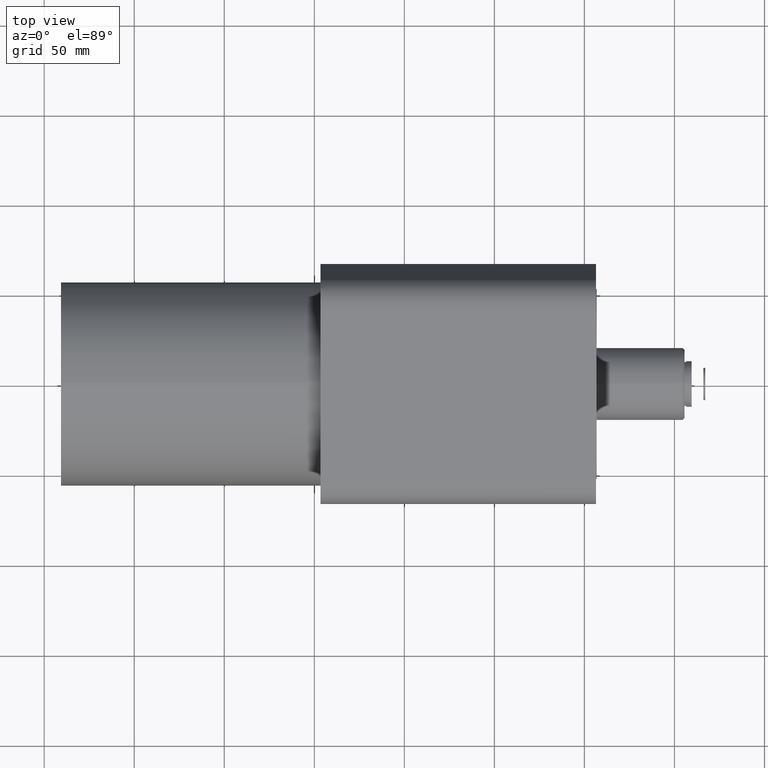
[diagram: clean part render]
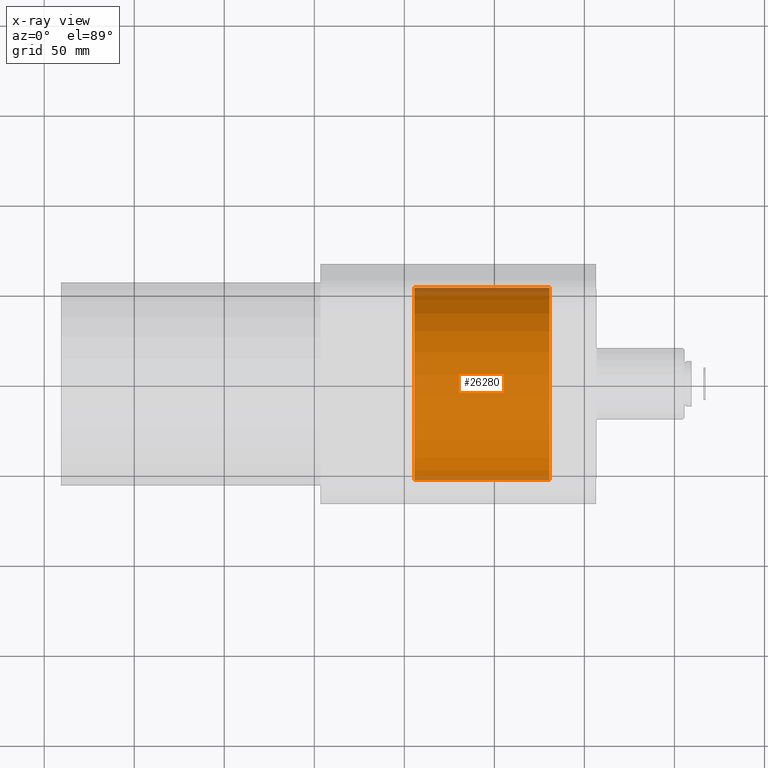
[diagram: x-ray — body ghosted, one internal face saturated and labeled with its STEP entity id]
A machine part, top view, then the same camera in x-ray: the body is ghosted and one INTERNAL B-rep face — a face not visible from any outside direction — is saturated and labeled: STEP entity #26280.
In plain terms, the highlighted cylindrical surface (bore or boss wall) has radius 53.5 mm, axis along (-1, -0, 0).
Its self-contained STEP definition (entity closure, byte-faithful):
#553 = FACE_OUTER_BOUND ( 'NONE', #23448, .T. ) ;
#1576 = AXIS2_PLACEMENT_3D ( 'NONE', #26874, #3689, #33622 ) ;
#1836 = AXIS2_PLACEMENT_3D ( 'NONE', #35008, #15714, #46142 ) ;
#3689 = DIRECTION ( 'NONE',  ( 1.000000000000000000, 0.000000000000000000, -0.000000000000000000 ) ) ;
#4639 = CIRCLE ( 'NONE', #1576, 53.50000000000000000 ) ;
#4990 = EDGE_CURVE ( 'NONE', #20344, #20344, #8792, .T. ) ;
#5841 = ORIENTED_EDGE ( 'NONE', *, *, #35771, .F. ) ;
#8739 = DIRECTION ( 'NONE',  ( -1.000000000000000000, -0.000000000000000000, 0.000000000000000000 ) ) ;
#8792 = CIRCLE ( 'NONE', #1836, 53.50000000000000000 ) ;
#12369 = CYLINDRICAL_SURFACE ( 'NONE', #14367, 53.50000000000000000 ) ;
#14367 = AXIS2_PLACEMENT_3D ( 'NONE', #30719, #8739, #41817 ) ;
#15714 = DIRECTION ( 'NONE',  ( -1.000000000000000000, -0.000000000000000000, 0.000000000000000000 ) ) ;
#17149 = VERTEX_POINT ( 'NONE', #31886 ) ;
#20344 = VERTEX_POINT ( 'NONE', #28300 ) ;
#23448 = EDGE_LOOP ( 'NONE', ( #47745 ) ) ;
#26280 = ADVANCED_FACE ( 'NONE', ( #33860, #553 ), #12369, .F. ) ;
#26874 = CARTESIAN_POINT ( 'NONE',  ( -94.38570820876500989, -2.868484540601966733E-14, -1.280599160271244296E-16 ) ) ;
#28300 = CARTESIAN_POINT ( 'NONE',  ( -19.38570820876500633, 16.73277019097461960, 50.81598569088304629 ) ) ;
#30719 = CARTESIAN_POINT ( 'NONE',  ( -156.2462040789306741, -2.868484540601966733E-14, -1.280599160271244296E-16 ) ) ;
#31600 = EDGE_LOOP ( 'NONE', ( #5841 ) ) ;
#31886 = CARTESIAN_POINT ( 'NONE',  ( -94.38570820876500989, 16.73277019097461960, 50.81598569088304629 ) ) ;
#33622 = DIRECTION ( 'NONE',  ( 0.000000000000000000, 0.3127620596443859702, 0.9498315082408046450 ) ) ;
#33860 = FACE_OUTER_BOUND ( 'NONE', #31600, .T. ) ;
#35008 = CARTESIAN_POINT ( 'NONE',  ( -19.38570820876500633, -2.868484540601966733E-14, -1.280599160271244296E-16 ) ) ;
#35771 = EDGE_CURVE ( 'NONE', #17149, #17149, #4639, .T. ) ;
#41817 = DIRECTION ( 'NONE',  ( 0.000000000000000000, 0.3127620596443859702, 0.9498315082408046450 ) ) ;
#46142 = DIRECTION ( 'NONE',  ( 0.000000000000000000, 0.3127620596443859702, 0.9498315082408046450 ) ) ;
#47745 = ORIENTED_EDGE ( 'NONE', *, *, #4990, .F. ) ;